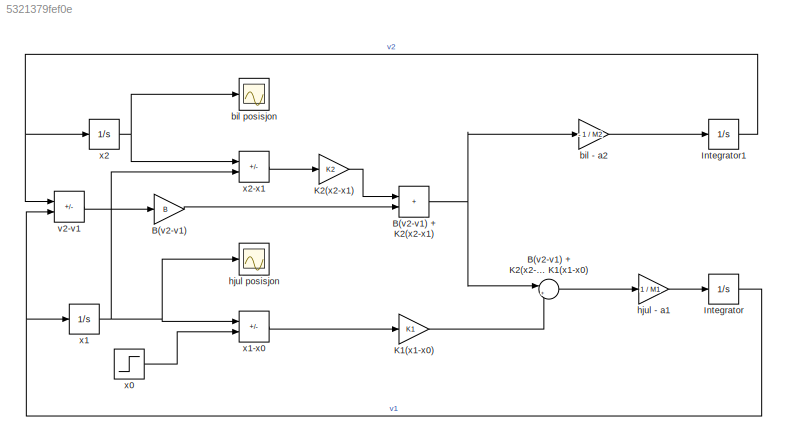
MODEL slx_5321379fef0e
KIND model
CONFIG AbsTol = auto
CONFIG EnableMultiTasking = off
CONFIG FixedStep = auto
CONFIG MaxStep = auto
CONFIG MinStep = auto
CONFIG RelTol = 1e-3
CONFIG SampleTimeConstraint = Unconstrained
CONFIG SolverName = VariableStepAuto
CONFIG StartTime = 0.0
CONFIG StopTime = 10.0
BLOCK [Gain] B(v2-v1)
  Gain = B
BLOCK [Sum] B(v2-v1) + K2(x2-x1)
  IconShape = rectangular
BLOCK [Sum] B(v2-v1) + K2(x2-x1) - K1(x1-x0)
  Inputs = |+-
  NameLocation = top
BLOCK [Integrator] Integrator
BLOCK [Integrator] Integrator1
BLOCK [Gain] K1(x1-x0)
  Gain = K1
BLOCK [Gain] K2(x2-x1)
  Gain = K2
BLOCK [Gain] bil - a2
  Gain = - 1 / M2
BLOCK [Scope] bil posisjon
  ActiveDisplayYMaximum = 2.0459551241281444
  ActiveDisplayYMinimum = -0.2273283471253493
  DataLoggingVariableName = ScopeData1
  Floating = off
  GraphicalSettings = {"Style":{"BackgroundColor":[0.12941176470588237,0.12941176470588237,0.12941176470588237],"AxesColor":[0.07058823529411765,0.07058823529411765,0.07058823529411765],"LabelsColor":[0.8509803921568627,0.8509803921568627,0.8509803921568627],"PreserveColors":false,"Visible":[true],"LineStyle":["-"],"LineWidth":[1.5],"BarWidth":[0.9],"LineColor":["auto"],"LineFaceAlpha":[1],"LineEdgeAlpha":[1],"Marker":...<+1987ch>
  MultipleDisplayCache = [{"MaxYLimMag":2.0459551241281444,"MaxYLimReal":2.0459551241281444,"MinYLimMag":0,"MinYLimReal":-0.2273283471253493,"PlotAsMagnitudePhase":false,"ShowGrid":true,"ShowLegend":false,"Title":"%<SignalLabel>","YLabel":""}]
  NumInputPorts = 1
  ScopeFrameLocation = window
  Visible = on
  WasSavedAsWebScope = on
  WindowPosition = [2336.000000,502.000000,560.000000,420.000000,]
BLOCK [Gain] hjul - a1
  Gain = 1 / M1
BLOCK [Scope] hjul posisjon
  ActiveDisplayYMaximum = 1.4609926330493326
  ActiveDisplayYMinimum = -0.16233251478325914
  Floating = off
  GraphicalSettings = {"Style":{"BackgroundColor":[0.12941176470588237,0.12941176470588237,0.12941176470588237],"AxesColor":[0.07058823529411765,0.07058823529411765,0.07058823529411765],"LabelsColor":[0.8509803921568627,0.8509803921568627,0.8509803921568627],"PreserveColors":false,"Visible":[true],"LineStyle":["-"],"LineWidth":[1.5],"BarWidth":[0.9],"LineColor":["auto"],"LineFaceAlpha":[1],"LineEdgeAlpha":[1],"Marker":...<+1983ch>
  MultipleDisplayCache = [{"MaxYLimMag":1.4609926330493326,"MaxYLimReal":1.4609926330493326,"MinYLimMag":0,"MinYLimReal":-0.16233251478325914,"PlotAsMagnitudePhase":false,"ShowGrid":true,"ShowLegend":false,"Title":"%<SignalLabel>","YLabel":""}]
  NumInputPorts = 1
  ScopeFrameLocation = window
  Visible = on
  WasSavedAsWebScope = on
  WindowPosition = [2338.000000,79.000000,560.000000,420.000000,]
BLOCK [Sum] v2-v1
  IconShape = rectangular
  Inputs = +-
BLOCK [Step] x0
  SampleTime = 0
BLOCK [Integrator] x1
BLOCK [Sum] x1-x0
  IconShape = rectangular
  Inputs = +-
BLOCK [Integrator] x2
BLOCK [Sum] x2-x1
  IconShape = rectangular
  Inputs = +-
LINE B(v2-v1) + K2(x2-x1) - K1(x1-x0):1 -> hjul - a1:1
NET B(v2-v1) + K2(x2-x1):1 -> B(v2-v1) + K2(x2-x1) - K1(x1-x0):1, bil - a2:1
LINE B(v2-v1):1 -> B(v2-v1) + K2(x2-x1):2
NET Integrator1:1 -> v2-v1:1, x2:1
NET Integrator:1 -> v2-v1:2, x1:1
LINE K1(x1-x0):1 -> B(v2-v1) + K2(x2-x1) - K1(x1-x0):2
LINE K2(x2-x1):1 -> B(v2-v1) + K2(x2-x1):1
LINE bil - a2:1 -> Integrator1:1
LINE hjul - a1:1 -> Integrator:1
LINE v2-v1:1 -> B(v2-v1):1
LINE x0:1 -> x1-x0:2
LINE x1-x0:1 -> K1(x1-x0):1
NET x1:1 -> hjul posisjon:1, x1-x0:1, x2-x1:2
LINE x2-x1:1 -> K2(x2-x1):1
NET x2:1 -> bil posisjon:1, x2-x1:1
note: NET lines group one-source signal fan-out (src -> all destinations, sorted); 1:1 wires keep LINE
